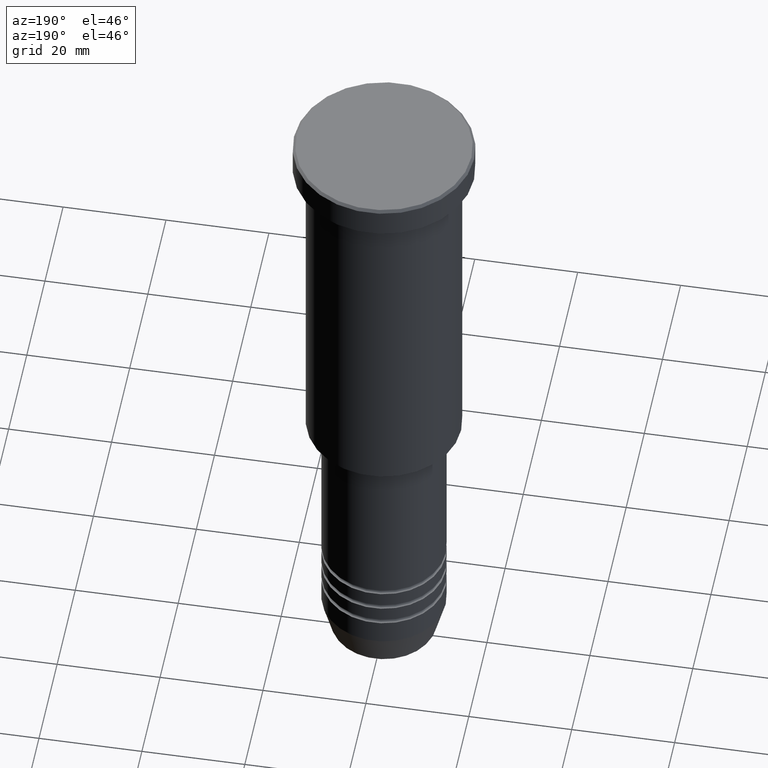
[diagram: clean part render]
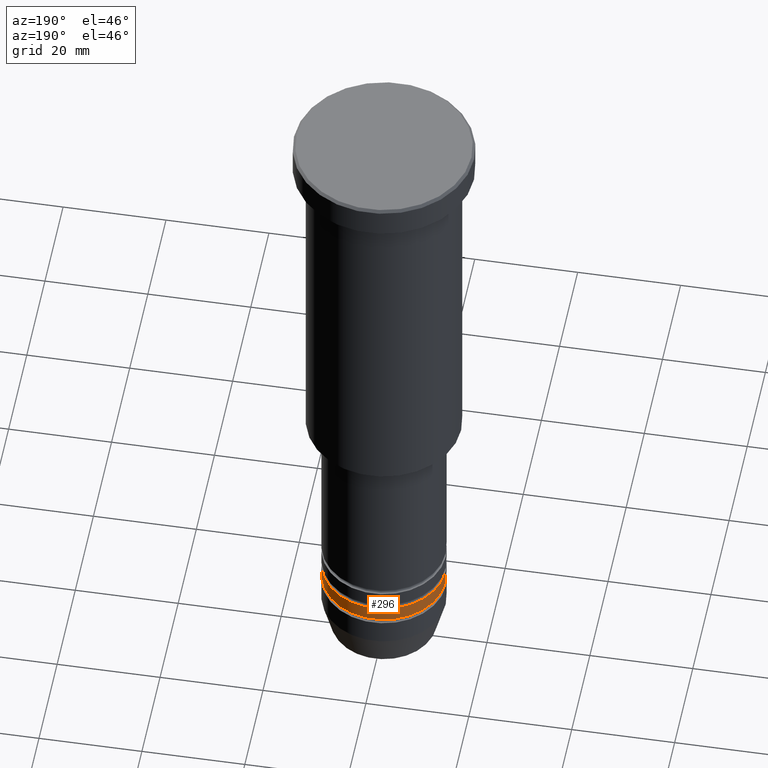
[diagram: same view with one face highlighted and labeled with its STEP entity id]
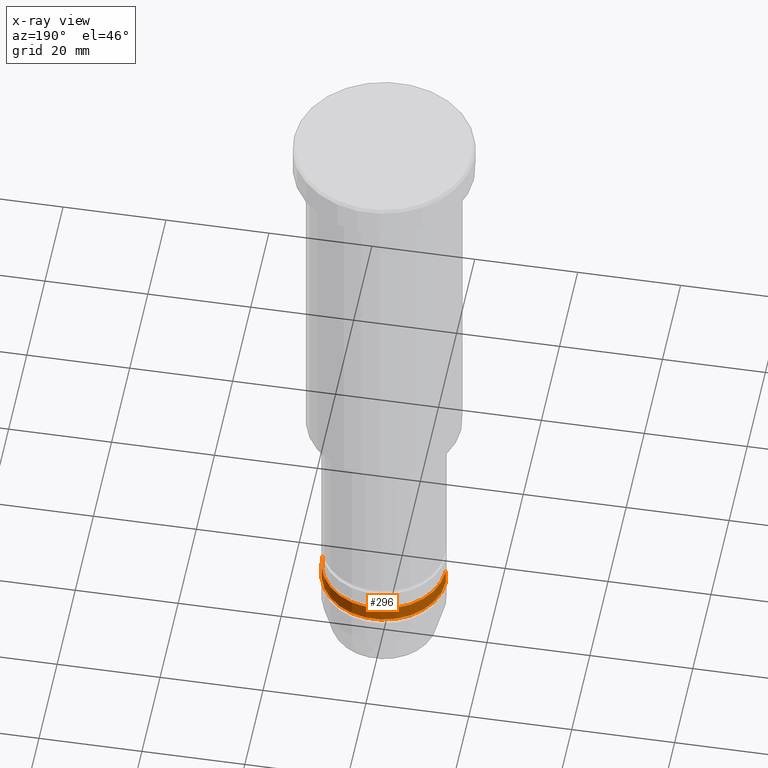
[diagram: x-ray of the same camera — body ghosted, the highlighted face saturated]
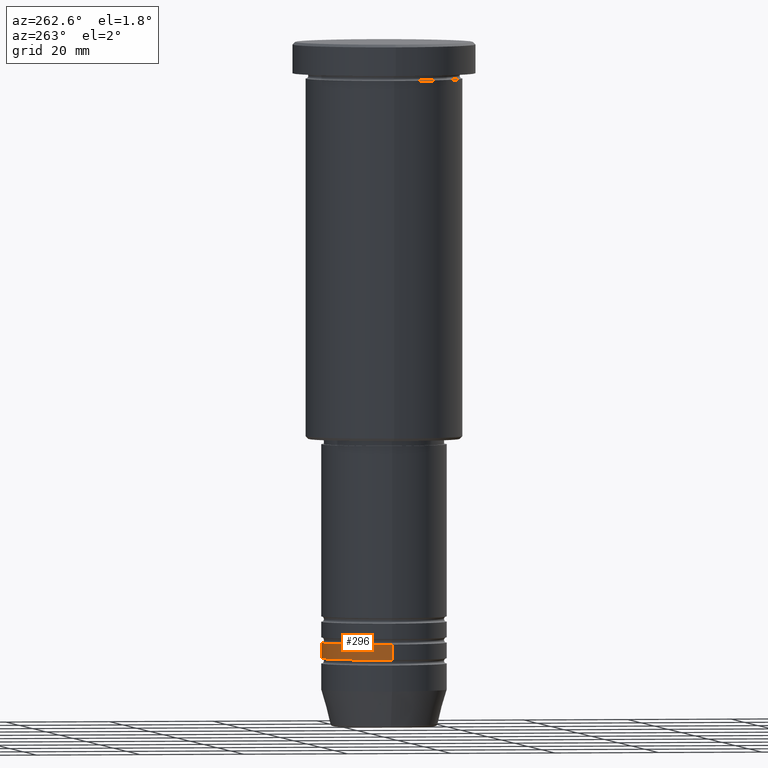
[diagram: same view with one face highlighted and labeled with its STEP entity id]
A machine part, auxiliary view. The second image highlights one B-rep face of the part: STEP entity #296.
The next image is the same camera in x-ray: the body ghosted, the highlighted face saturated — about 0% of this face is hidden behind the body in this view.
A second angle (auxiliary view) of the same face is appended — the face is thin or edge-on in the first view.
In plain terms, the highlighted cylindrical surface (partial cylindrical patch) has radius 12 mm, axis along (-0, -0, 1).
Its self-contained STEP definition (entity closure, byte-faithful):
#21 = DIRECTION ( 'NONE',  ( -0.000000000000000000, -0.000000000000000000, 1.000000000000000000 ) ) ;
#131 = LINE ( 'NONE', #204, #497 ) ;
#204 = CARTESIAN_POINT ( 'NONE',  ( -12.00000000000000000, 1.469576158976823947E-15, 0.000000000000000000 ) ) ;
#222 = DIRECTION ( 'NONE',  ( 1.000000000000000000, 0.000000000000000000, 0.000000000000000000 ) ) ;
#262 = EDGE_CURVE ( 'NONE', #317, #378, #595, .T. ) ;
#296 = ADVANCED_FACE ( 'NONE', ( #791 ), #1138, .T. ) ;
#311 = CARTESIAN_POINT ( 'NONE',  ( 0.000000000000000000, 0.000000000000000000, 0.000000000000000000 ) ) ;
#313 = ORIENTED_EDGE ( 'NONE', *, *, #262, .F. ) ;
#317 = VERTEX_POINT ( 'NONE', #780 ) ;
#340 = VERTEX_POINT ( 'NONE', #691 ) ;
#344 = AXIS2_PLACEMENT_3D ( 'NONE', #311, #864, #222 ) ;
#378 = VERTEX_POINT ( 'NONE', #630 ) ;
#397 = DIRECTION ( 'NONE',  ( 1.000000000000000000, 0.000000000000000000, 0.000000000000000000 ) ) ;
#438 = VECTOR ( 'NONE', #607, 1000.000000000000000 ) ;
#454 = CARTESIAN_POINT ( 'NONE',  ( 0.000000000000000000, 0.000000000000000000, -117.9999999999998863 ) ) ;
#497 = VECTOR ( 'NONE', #678, 1000.000000000000000 ) ;
#520 = CIRCLE ( 'NONE', #932, 12.00000000000000000 ) ;
#555 = EDGE_LOOP ( 'NONE', ( #880, #1166, #604, #313 ) ) ;
#573 = AXIS2_PLACEMENT_3D ( 'NONE', #454, #649, #1005 ) ;
#579 = CARTESIAN_POINT ( 'NONE',  ( -12.00000000000000000, 1.469576158976823947E-15, -117.9999999999998863 ) ) ;
#595 = LINE ( 'NONE', #1045, #438 ) ;
#604 = ORIENTED_EDGE ( 'NONE', *, *, #1065, .F. ) ;
#607 = DIRECTION ( 'NONE',  ( -0.000000000000000000, -0.000000000000000000, 1.000000000000000000 ) ) ;
#630 = CARTESIAN_POINT ( 'NONE',  ( 12.00000000000000000, 0.000000000000000000, -114.9999999999998863 ) ) ;
#649 = DIRECTION ( 'NONE',  ( -0.000000000000000000, -0.000000000000000000, 1.000000000000000000 ) ) ;
#678 = DIRECTION ( 'NONE',  ( -0.000000000000000000, -0.000000000000000000, 1.000000000000000000 ) ) ;
#691 = CARTESIAN_POINT ( 'NONE',  ( -12.00000000000000000, 1.469576158976823947E-15, -114.9999999999998863 ) ) ;
#780 = CARTESIAN_POINT ( 'NONE',  ( 12.00000000000000000, 0.000000000000000000, -117.9999999999998863 ) ) ;
#791 = FACE_OUTER_BOUND ( 'NONE', #555, .T. ) ;
#844 = CARTESIAN_POINT ( 'NONE',  ( 0.000000000000000000, 0.000000000000000000, -114.9999999999998863 ) ) ;
#864 = DIRECTION ( 'NONE',  ( -0.000000000000000000, -0.000000000000000000, 1.000000000000000000 ) ) ;
#880 = ORIENTED_EDGE ( 'NONE', *, *, #1164, .T. ) ;
#932 = AXIS2_PLACEMENT_3D ( 'NONE', #844, #21, #397 ) ;
#1005 = DIRECTION ( 'NONE',  ( 1.000000000000000000, 0.000000000000000000, 0.000000000000000000 ) ) ;
#1045 = CARTESIAN_POINT ( 'NONE',  ( 12.00000000000000000, 0.000000000000000000, 0.000000000000000000 ) ) ;
#1065 = EDGE_CURVE ( 'NONE', #378, #340, #520, .T. ) ;
#1138 = CYLINDRICAL_SURFACE ( 'NONE', #344, 12.00000000000000000 ) ;
#1140 = VERTEX_POINT ( 'NONE', #579 ) ;
#1154 = CIRCLE ( 'NONE', #573, 12.00000000000000000 ) ;
#1164 = EDGE_CURVE ( 'NONE', #317, #1140, #1154, .T. ) ;
#1166 = ORIENTED_EDGE ( 'NONE', *, *, #1181, .T. ) ;
#1181 = EDGE_CURVE ( 'NONE', #1140, #340, #131, .T. ) ;